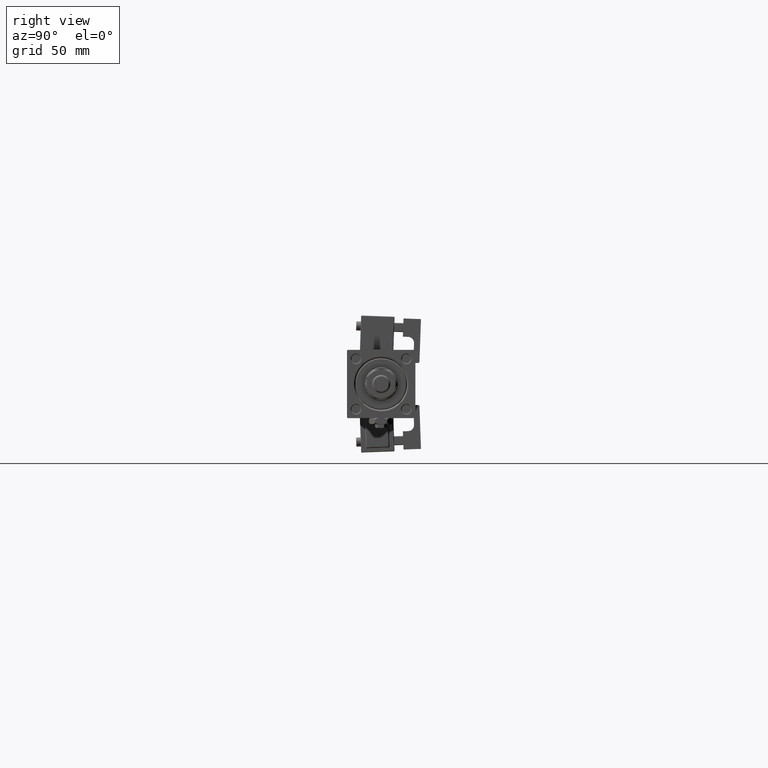
[diagram: clean part render]
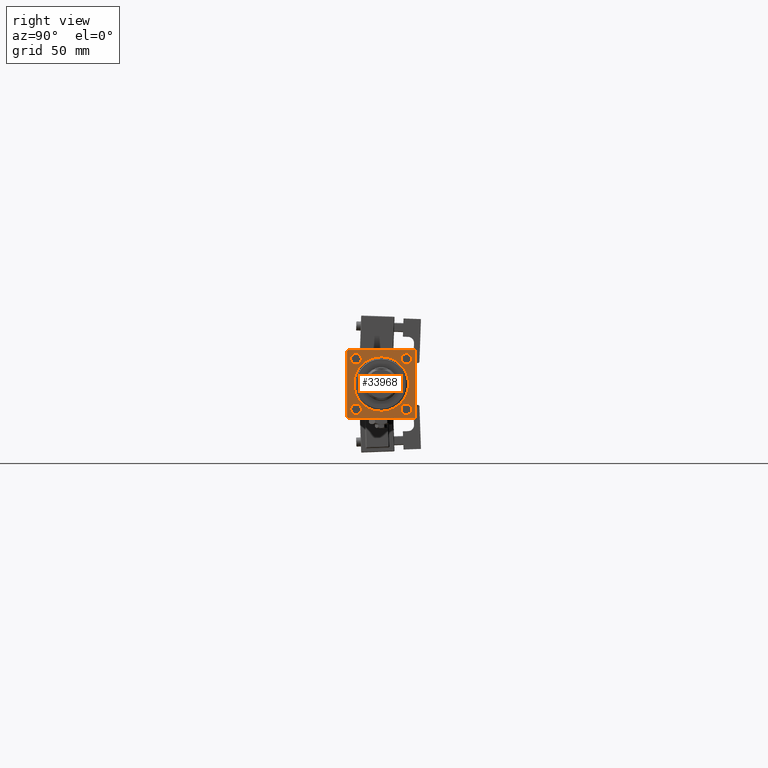
[diagram: same view with one face highlighted and labeled with its STEP entity id]
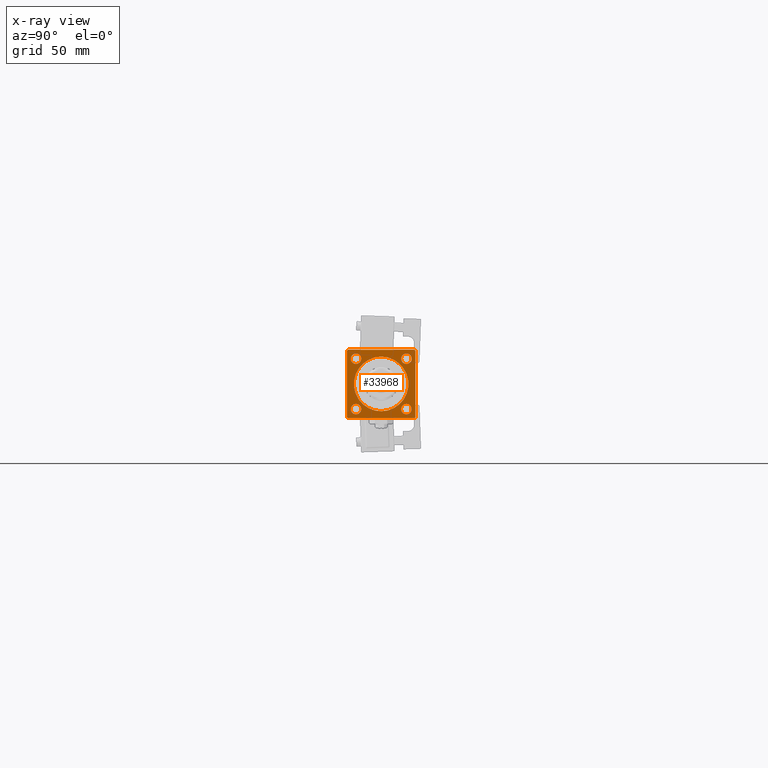
[diagram: x-ray of the same camera — body ghosted, the highlighted face saturated]
A machine part, right view. The second image highlights one B-rep face of the part: STEP entity #33968.
The next image is the same camera in x-ray: the body ghosted, the highlighted face saturated — about 0% of this face is hidden behind the body in this view.
In plain terms, the highlighted planar face has unit normal (-1, 0, 0).
Its self-contained STEP definition (entity closure, byte-faithful):
#491 = DIRECTION ( 'NONE',  ( -0.000000000000000000, 0.000000000000000000, 1.000000000000000000 ) ) ;
#907 = ORIENTED_EDGE ( 'NONE', *, *, #30447, .T. ) ;
#1121 = DIRECTION ( 'NONE',  ( -1.000000000000000000, 0.000000000000000000, -0.000000000000000000 ) ) ;
#1197 = VERTEX_POINT ( 'NONE', #7395 ) ;
#1476 = CARTESIAN_POINT ( 'NONE',  ( 403.0000000000000000, -16.60000000000000497, -16.60000000000000497 ) ) ;
#2164 = CARTESIAN_POINT ( 'NONE',  ( 403.0000000000000000, -21.99999999999993960, -22.50000000000000000 ) ) ;
#2415 = ORIENTED_EDGE ( 'NONE', *, *, #37113, .T. ) ;
#2567 = DIRECTION ( 'NONE',  ( -1.000000000000000000, 0.000000000000000000, -0.000000000000000000 ) ) ;
#2674 = DIRECTION ( 'NONE',  ( 0.000000000000000000, 0.000000000000000000, 1.000000000000000000 ) ) ;
#2719 = VERTEX_POINT ( 'NONE', #7772 ) ;
#2861 = DIRECTION ( 'NONE',  ( 0.000000000000000000, 0.000000000000000000, 1.000000000000000000 ) ) ;
#4106 = EDGE_CURVE ( 'NONE', #10956, #18203, #30474, .T. ) ;
#5888 = CIRCLE ( 'NONE', #30171, 3.500000000000003109 ) ;
#5965 = VECTOR ( 'NONE', #11465, 1000.000000000000000 ) ;
#6626 = CARTESIAN_POINT ( 'NONE',  ( 403.0000000000000000, 0.000000000000000000, 0.000000000000000000 ) ) ;
#7060 = CIRCLE ( 'NONE', #45727, 18.00000000000001421 ) ;
#7352 = EDGE_CURVE ( 'NONE', #18482, #48570, #9219, .T. ) ;
#7395 = CARTESIAN_POINT ( 'NONE',  ( 403.0000000000000000, 22.00000000000000355, -22.49999999999999645 ) ) ;
#7772 = CARTESIAN_POINT ( 'NONE',  ( 403.0000000000000000, 2.204364238465237794E-15, 18.00000000000001421 ) ) ;
#7897 = CIRCLE ( 'NONE', #44804, 18.00000000000001421 ) ;
#8123 = FACE_BOUND ( 'NONE', #39093, .T. ) ;
#8296 = EDGE_LOOP ( 'NONE', ( #40036, #35076 ) ) ;
#8598 = EDGE_CURVE ( 'NONE', #32545, #30469, #9042, .T. ) ;
#9042 = CIRCLE ( 'NONE', #45904, 3.500000000000003109 ) ;
#9219 = LINE ( 'NONE', #43561, #53971 ) ;
#9223 = DIRECTION ( 'NONE',  ( 0.000000000000000000, 0.000000000000000000, 1.000000000000000000 ) ) ;
#9250 = FACE_BOUND ( 'NONE', #10062, .T. ) ;
#9451 = DIRECTION ( 'NONE',  ( 0.000000000000000000, 0.000000000000000000, 1.000000000000000000 ) ) ;
#9552 = DIRECTION ( 'NONE',  ( -1.000000000000000000, 0.000000000000000000, -0.000000000000000000 ) ) ;
#9636 = VECTOR ( 'NONE', #21896, 1000.000000000000000 ) ;
#9794 = AXIS2_PLACEMENT_3D ( 'NONE', #12899, #33726, #491 ) ;
#9986 = EDGE_CURVE ( 'NONE', #18203, #10956, #31464, .T. ) ;
#10062 = EDGE_LOOP ( 'NONE', ( #40314, #27745 ) ) ;
#10279 = VERTEX_POINT ( 'NONE', #22496 ) ;
#10956 = VERTEX_POINT ( 'NONE', #16876 ) ;
#11185 = CIRCLE ( 'NONE', #53448, 3.500000000000003109 ) ;
#11253 = VERTEX_POINT ( 'NONE', #41888 ) ;
#11465 = DIRECTION ( 'NONE',  ( -0.000000000000000000, -0.7071067811865081598, -0.7071067811865867636 ) ) ;
#11900 = LINE ( 'NONE', #50759, #23382 ) ;
#12899 = CARTESIAN_POINT ( 'NONE',  ( 403.0000000000000000, 0.000000000000000000, 0.000000000000000000 ) ) ;
#13524 = VERTEX_POINT ( 'NONE', #43309 ) ;
#13746 = ORIENTED_EDGE ( 'NONE', *, *, #37039, .T. ) ;
#14810 = DIRECTION ( 'NONE',  ( 0.000000000000000000, 0.000000000000000000, -1.000000000000000000 ) ) ;
#14908 = CARTESIAN_POINT ( 'NONE',  ( 403.0000000000000000, 0.000000000000000000, 0.000000000000000000 ) ) ;
#14978 = DIRECTION ( 'NONE',  ( -1.000000000000000000, 0.000000000000000000, -0.000000000000000000 ) ) ;
#16307 = EDGE_LOOP ( 'NONE', ( #47819, #36161 ) ) ;
#16876 = CARTESIAN_POINT ( 'NONE',  ( 403.0000000000000000, -16.60000000000000497, -20.10000000000000853 ) ) ;
#17077 = CARTESIAN_POINT ( 'NONE',  ( 403.0000000000000000, 22.50000000000000355, -21.99999999999999645 ) ) ;
#17737 = ORIENTED_EDGE ( 'NONE', *, *, #41543, .T. ) ;
#18203 = VERTEX_POINT ( 'NONE', #25023 ) ;
#18275 = ORIENTED_EDGE ( 'NONE', *, *, #49168, .T. ) ;
#18482 = VERTEX_POINT ( 'NONE', #55077 ) ;
#18953 = CARTESIAN_POINT ( 'NONE',  ( 403.0000000000000000, 22.50000000000000355, 22.50000000000000355 ) ) ;
#19348 = DIRECTION ( 'NONE',  ( 0.000000000000000000, 0.7071067811865426878, -0.7071067811865524577 ) ) ;
#19427 = CARTESIAN_POINT ( 'NONE',  ( 403.0000000000000000, 0.000000000000000000, -18.00000000000001421 ) ) ;
#19493 = EDGE_CURVE ( 'NONE', #22678, #10279, #11185, .T. ) ;
#19788 = VECTOR ( 'NONE', #36120, 1000.000000000000000 ) ;
#20021 = CARTESIAN_POINT ( 'NONE',  ( 403.0000000000000000, 22.50000000000000355, 22.50000000000000355 ) ) ;
#20414 = EDGE_LOOP ( 'NONE', ( #907, #38560 ) ) ;
#21608 = CARTESIAN_POINT ( 'NONE',  ( 403.0000000000000000, -16.59999999999999787, 16.59999999999999787 ) ) ;
#21896 = DIRECTION ( 'NONE',  ( 0.000000000000000000, -1.000000000000000000, -7.709882115452476934E-17 ) ) ;
#22496 = CARTESIAN_POINT ( 'NONE',  ( 403.0000000000000000, 16.59999999999999787, -13.10000000000000142 ) ) ;
#22648 = EDGE_CURVE ( 'NONE', #31361, #40591, #41121, .T. ) ;
#22678 = VERTEX_POINT ( 'NONE', #36334 ) ;
#23094 = CARTESIAN_POINT ( 'NONE',  ( 403.0000000000000000, 16.59999999999999787, -16.60000000000000497 ) ) ;
#23382 = VECTOR ( 'NONE', #25407, 1000.000000000000114 ) ;
#23389 = CARTESIAN_POINT ( 'NONE',  ( 403.0000000000000000, 16.59999999999999787, 13.10000000000000142 ) ) ;
#23540 = AXIS2_PLACEMENT_3D ( 'NONE', #21608, #39335, #9223 ) ;
#23731 = DIRECTION ( 'NONE',  ( -1.000000000000000000, 0.000000000000000000, -0.000000000000000000 ) ) ;
#23893 = VECTOR ( 'NONE', #50901, 1000.000000000000114 ) ;
#24049 = ORIENTED_EDGE ( 'NONE', *, *, #8598, .T. ) ;
#25023 = CARTESIAN_POINT ( 'NONE',  ( 403.0000000000000000, -16.60000000000000497, -13.10000000000000142 ) ) ;
#25086 = AXIS2_PLACEMENT_3D ( 'NONE', #27680, #14978, #2861 ) ;
#25407 = DIRECTION ( 'NONE',  ( 0.000000000000000000, -0.7071067811865474617, 0.7071067811865474617 ) ) ;
#25721 = CARTESIAN_POINT ( 'NONE',  ( 403.0000000000000000, -21.99999999999992539, 22.49999999999999289 ) ) ;
#26342 = EDGE_CURVE ( 'NONE', #48570, #13524, #40752, .T. ) ;
#27046 = VERTEX_POINT ( 'NONE', #19427 ) ;
#27574 = CARTESIAN_POINT ( 'NONE',  ( 403.0000000000000000, 16.59999999999999787, 16.60000000000000497 ) ) ;
#27680 = CARTESIAN_POINT ( 'NONE',  ( 403.0000000000000000, -16.60000000000000497, -16.60000000000000497 ) ) ;
#27745 = ORIENTED_EDGE ( 'NONE', *, *, #53593, .T. ) ;
#28129 = AXIS2_PLACEMENT_3D ( 'NONE', #23094, #1121, #53236 ) ;
#28786 = AXIS2_PLACEMENT_3D ( 'NONE', #1476, #23731, #44858 ) ;
#30171 = AXIS2_PLACEMENT_3D ( 'NONE', #27574, #9552, #40504 ) ;
#30373 = AXIS2_PLACEMENT_3D ( 'NONE', #38583, #2567, #34352 ) ;
#30447 = EDGE_CURVE ( 'NONE', #27046, #2719, #7060, .T. ) ;
#30469 = VERTEX_POINT ( 'NONE', #54490 ) ;
#30474 = CIRCLE ( 'NONE', #25086, 3.500000000000003109 ) ;
#31340 = EDGE_CURVE ( 'NONE', #1197, #13524, #42458, .T. ) ;
#31346 = DIRECTION ( 'NONE',  ( -1.000000000000000000, 0.000000000000000000, -0.000000000000000000 ) ) ;
#31361 = VERTEX_POINT ( 'NONE', #55146 ) ;
#31464 = CIRCLE ( 'NONE', #28786, 3.500000000000003109 ) ;
#31880 = DIRECTION ( 'NONE',  ( 0.000000000000000000, 0.000000000000000000, 1.000000000000000000 ) ) ;
#32545 = VERTEX_POINT ( 'NONE', #51143 ) ;
#32853 = LINE ( 'NONE', #37075, #5965 ) ;
#33726 = DIRECTION ( 'NONE',  ( -1.000000000000000000, 0.000000000000000000, -0.000000000000000000 ) ) ;
#33968 = ADVANCED_FACE ( 'NONE', ( #9250, #8123, #39074, #38801, #50936, #39361 ), #42736, .F. ) ;
#34352 = DIRECTION ( 'NONE',  ( 0.000000000000000000, 0.000000000000000000, 1.000000000000000000 ) ) ;
#34811 = CIRCLE ( 'NONE', #30373, 3.500000000000003109 ) ;
#35076 = ORIENTED_EDGE ( 'NONE', *, *, #43483, .T. ) ;
#35147 = VERTEX_POINT ( 'NONE', #23389 ) ;
#36120 = DIRECTION ( 'NONE',  ( 0.000000000000000000, -1.000000000000000000, -2.312964634635742957E-16 ) ) ;
#36161 = ORIENTED_EDGE ( 'NONE', *, *, #9986, .T. ) ;
#36334 = CARTESIAN_POINT ( 'NONE',  ( 403.0000000000000000, 16.59999999999999787, -20.10000000000000853 ) ) ;
#37039 = EDGE_CURVE ( 'NONE', #11253, #41075, #40630, .T. ) ;
#37075 = CARTESIAN_POINT ( 'NONE',  ( 403.0000000000000000, -22.49999999999999645, 21.99999999999987921 ) ) ;
#37113 = EDGE_CURVE ( 'NONE', #31361, #11253, #11900, .T. ) ;
#37972 = DIRECTION ( 'NONE',  ( 0.000000000000000000, 0.000000000000000000, 1.000000000000000000 ) ) ;
#38560 = ORIENTED_EDGE ( 'NONE', *, *, #54578, .T. ) ;
#38583 = CARTESIAN_POINT ( 'NONE',  ( 403.0000000000000000, 16.59999999999999787, 16.60000000000000497 ) ) ;
#38801 = FACE_BOUND ( 'NONE', #8296, .T. ) ;
#39074 = FACE_BOUND ( 'NONE', #16307, .T. ) ;
#39093 = EDGE_LOOP ( 'NONE', ( #17737, #24049 ) ) ;
#39335 = DIRECTION ( 'NONE',  ( -1.000000000000000000, 0.000000000000000000, -0.000000000000000000 ) ) ;
#39361 = FACE_OUTER_BOUND ( 'NONE', #53876, .T. ) ;
#40036 = ORIENTED_EDGE ( 'NONE', *, *, #19493, .T. ) ;
#40314 = ORIENTED_EDGE ( 'NONE', *, *, #48994, .T. ) ;
#40336 = CARTESIAN_POINT ( 'NONE',  ( 403.0000000000000000, -16.59999999999999787, 16.59999999999999787 ) ) ;
#40504 = DIRECTION ( 'NONE',  ( 0.000000000000000000, 0.000000000000000000, 1.000000000000000000 ) ) ;
#40591 = VERTEX_POINT ( 'NONE', #44418 ) ;
#40630 = LINE ( 'NONE', #18953, #19788 ) ;
#40752 = LINE ( 'NONE', #2164, #42817 ) ;
#41075 = VERTEX_POINT ( 'NONE', #25721 ) ;
#41121 = LINE ( 'NONE', #20021, #46302 ) ;
#41467 = VERTEX_POINT ( 'NONE', #48459 ) ;
#41543 = EDGE_CURVE ( 'NONE', #30469, #32545, #47829, .T. ) ;
#41888 = CARTESIAN_POINT ( 'NONE',  ( 403.0000000000000000, 22.00000000000000355, 22.50000000000000355 ) ) ;
#42458 = LINE ( 'NONE', #43297, #9636 ) ;
#42736 = PLANE ( 'NONE',  #9794 ) ;
#42817 = VECTOR ( 'NONE', #19348, 1000.000000000000000 ) ;
#43297 = CARTESIAN_POINT ( 'NONE',  ( 403.0000000000000000, 22.50000000000000355, -22.49999999999999645 ) ) ;
#43309 = CARTESIAN_POINT ( 'NONE',  ( 403.0000000000000000, -21.99999999999992539, -22.50000000000000000 ) ) ;
#43483 = EDGE_CURVE ( 'NONE', #10279, #22678, #54196, .T. ) ;
#43561 = CARTESIAN_POINT ( 'NONE',  ( 403.0000000000000000, -22.49999999999999645, 22.49999999999999289 ) ) ;
#44084 = DIRECTION ( 'NONE',  ( -1.000000000000000000, 0.000000000000000000, -0.000000000000000000 ) ) ;
#44418 = CARTESIAN_POINT ( 'NONE',  ( 403.0000000000000000, 22.50000000000000355, -21.99999999999998224 ) ) ;
#44804 = AXIS2_PLACEMENT_3D ( 'NONE', #14908, #46716, #37972 ) ;
#44858 = DIRECTION ( 'NONE',  ( 0.000000000000000000, 0.000000000000000000, 1.000000000000000000 ) ) ;
#45487 = DIRECTION ( 'NONE',  ( -1.000000000000000000, 0.000000000000000000, -0.000000000000000000 ) ) ;
#45727 = AXIS2_PLACEMENT_3D ( 'NONE', #6626, #45487, #2674 ) ;
#45904 = AXIS2_PLACEMENT_3D ( 'NONE', #40336, #31346, #31880 ) ;
#46025 = ORIENTED_EDGE ( 'NONE', *, *, #31340, .F. ) ;
#46302 = VECTOR ( 'NONE', #49323, 1000.000000000000000 ) ;
#46716 = DIRECTION ( 'NONE',  ( -1.000000000000000000, 0.000000000000000000, -0.000000000000000000 ) ) ;
#47766 = CARTESIAN_POINT ( 'NONE',  ( 403.0000000000000000, 16.59999999999999787, -16.60000000000000497 ) ) ;
#47795 = CARTESIAN_POINT ( 'NONE',  ( 403.0000000000000000, -22.49999999999999645, -21.99999999999992184 ) ) ;
#47819 = ORIENTED_EDGE ( 'NONE', *, *, #4106, .T. ) ;
#47829 = CIRCLE ( 'NONE', #23540, 3.500000000000003109 ) ;
#48459 = CARTESIAN_POINT ( 'NONE',  ( 403.0000000000000000, 16.59999999999999787, 20.10000000000000853 ) ) ;
#48570 = VERTEX_POINT ( 'NONE', #47795 ) ;
#48994 = EDGE_CURVE ( 'NONE', #35147, #41467, #5888, .T. ) ;
#49030 = ORIENTED_EDGE ( 'NONE', *, *, #26342, .T. ) ;
#49168 = EDGE_CURVE ( 'NONE', #1197, #40591, #55669, .T. ) ;
#49323 = DIRECTION ( 'NONE',  ( 0.000000000000000000, 0.000000000000000000, -1.000000000000000000 ) ) ;
#50023 = EDGE_CURVE ( 'NONE', #41075, #18482, #32853, .T. ) ;
#50424 = ORIENTED_EDGE ( 'NONE', *, *, #7352, .T. ) ;
#50759 = CARTESIAN_POINT ( 'NONE',  ( 403.0000000000000000, 22.00000000000000355, 22.50000000000000355 ) ) ;
#50901 = DIRECTION ( 'NONE',  ( -0.000000000000000000, 0.7071067811865474617, 0.7071067811865474617 ) ) ;
#50936 = FACE_BOUND ( 'NONE', #20414, .T. ) ;
#51143 = CARTESIAN_POINT ( 'NONE',  ( 403.0000000000000000, -16.59999999999999787, 20.10000000000000142 ) ) ;
#53236 = DIRECTION ( 'NONE',  ( 0.000000000000000000, 0.000000000000000000, 1.000000000000000000 ) ) ;
#53448 = AXIS2_PLACEMENT_3D ( 'NONE', #47766, #44084, #9451 ) ;
#53593 = EDGE_CURVE ( 'NONE', #41467, #35147, #34811, .T. ) ;
#53876 = EDGE_LOOP ( 'NONE', ( #50424, #49030, #46025, #18275, #55617, #2415, #13746, #54683 ) ) ;
#53971 = VECTOR ( 'NONE', #14810, 1000.000000000000000 ) ;
#54196 = CIRCLE ( 'NONE', #28129, 3.500000000000003109 ) ;
#54490 = CARTESIAN_POINT ( 'NONE',  ( 403.0000000000000000, -16.59999999999999787, 13.09999999999999432 ) ) ;
#54578 = EDGE_CURVE ( 'NONE', #2719, #27046, #7897, .T. ) ;
#54683 = ORIENTED_EDGE ( 'NONE', *, *, #50023, .T. ) ;
#55077 = CARTESIAN_POINT ( 'NONE',  ( 403.0000000000000000, -22.49999999999999645, 21.99999999999987921 ) ) ;
#55146 = CARTESIAN_POINT ( 'NONE',  ( 403.0000000000000000, 22.50000000000000355, 22.00000000000000355 ) ) ;
#55617 = ORIENTED_EDGE ( 'NONE', *, *, #22648, .F. ) ;
#55669 = LINE ( 'NONE', #17077, #23893 ) ;